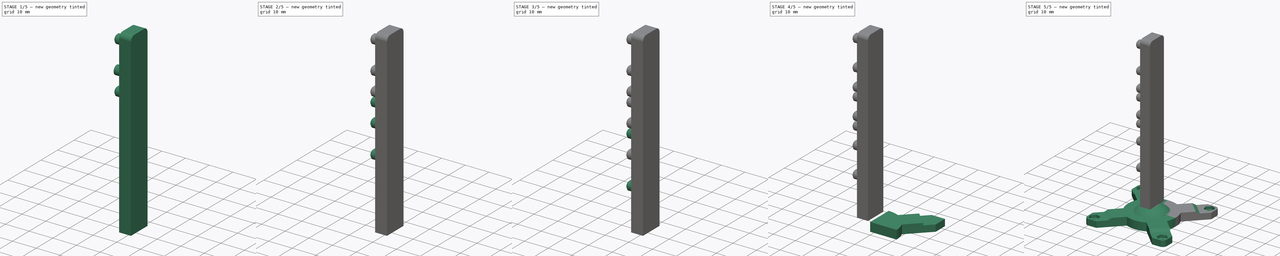
[diagram: build sequence overview — one tinted view per stage of 5, left to right]
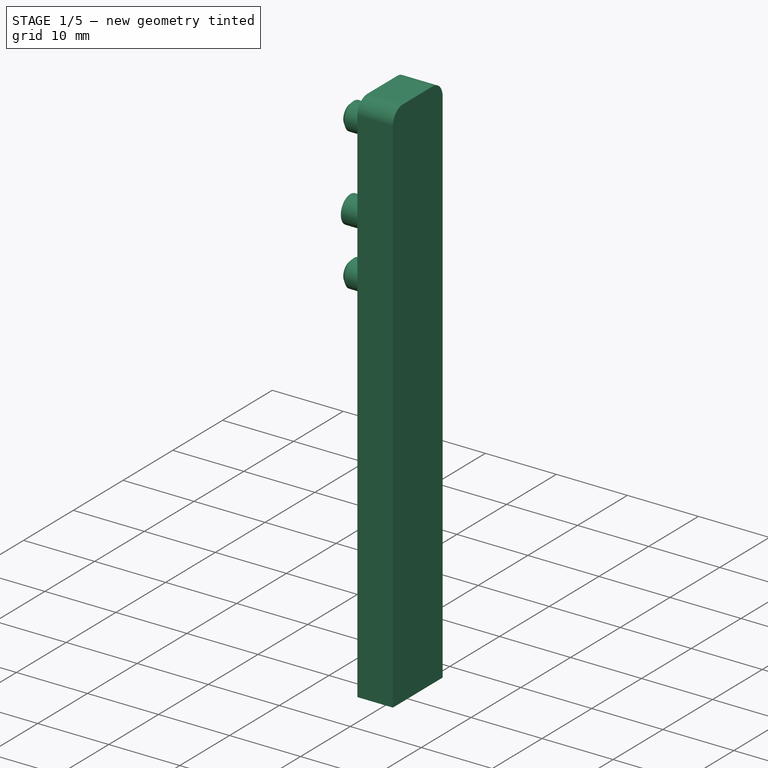
[diagram: stage 1 of 5 — iso view after this stage's code; geometry added in this stage tinted green]
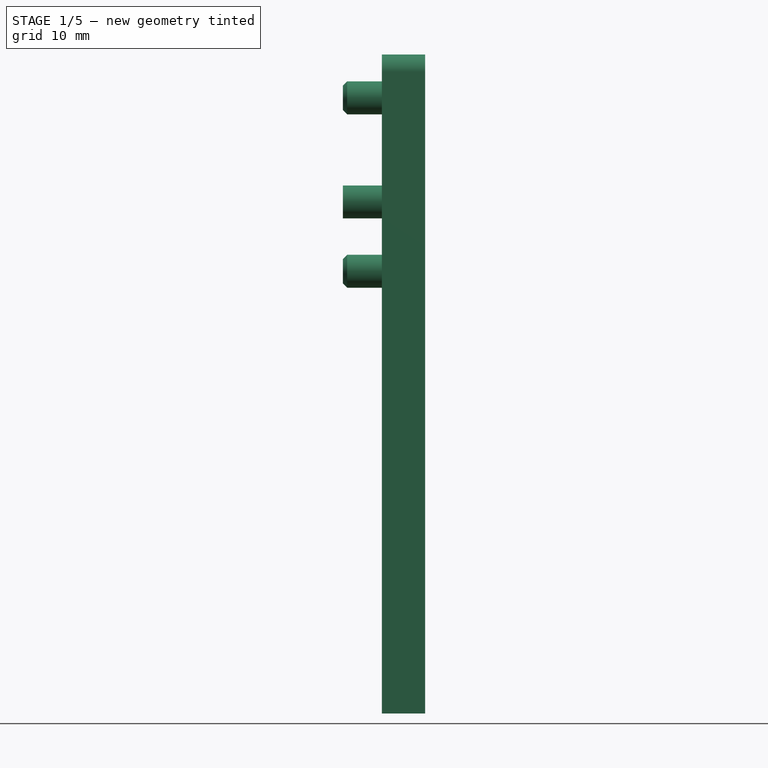
[diagram: stage 1 of 5 — front view after this stage's code; geometry added in this stage tinted green]
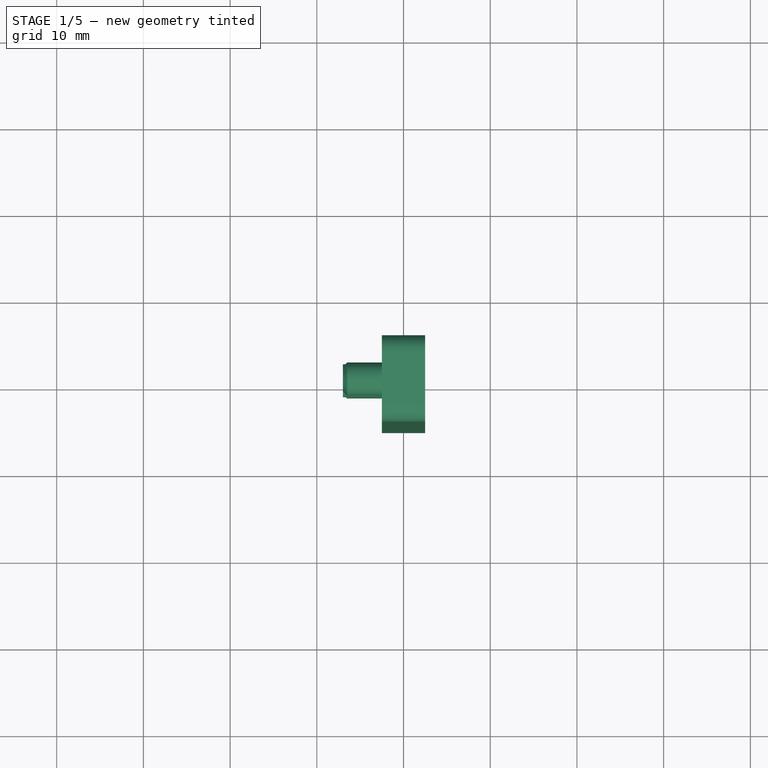
[diagram: stage 1 of 5 — top view after this stage's code; geometry added in this stage tinted green]
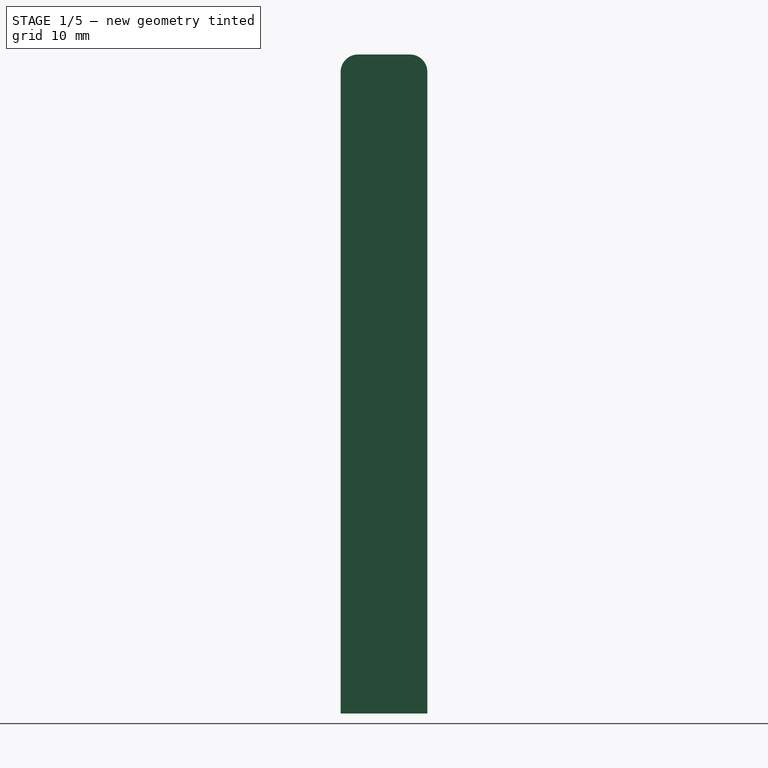
[diagram: stage 1 of 5 — right view after this stage's code; geometry added in this stage tinted green]
FCSTD DOCUMENT  (FreeCAD 0.19R24276 (Git))
Label: flower_whole
License: All rights reserved
LicenseURL: http://en.wikipedia.org/wiki/All_rights_reserved
objects: Sketcher::SketchObject×22, PartDesign::Pad×11, PartDesign::Hole×6, PartDesign::Fillet×6, PartDesign::Body×6, PartDesign::Chamfer×5, PartDesign::LinearPattern×5, PartDesign::Pocket×4, PartDesign::PolarPattern×1, PartDesign::Mirrored×1, PartDesign::Revolution×1
note: 101 computed .brp shape members not serialized (recipe doc carries the construction recipe); baked Part::Feature solids carry a one-line shape summary decoded from their .brp

FEATURE [PartDesign::Body] Body003  label="peduncle02"
  Group = -> [Sketch015,Pad006,Sketch014,Pad005,Chamfer002,LinearPattern002,Sketch013,Hole003,Fillet003]
  Origin = -> Origin003
  Tip = -> Fillet003
FEATURE [Sketcher::SketchObject] Sketch018  label="base_sk003"
  FullyConstrained = true
  MapMode = 5
  Placement = pos=(0,0,0) rot=(0.57735,0.57735,0.57735;2.0944rad)
  Support = -> [YZ_Plane004]
  sketch-geometry (4):
    g0: LineSegment StartX=-5 StartY=7 StartZ=0 EndX=5 EndY=7 EndZ=0
    g1: LineSegment StartX=5 StartY=7 StartZ=0 EndX=5 EndY=71 EndZ=0
    g2: LineSegment StartX=5 StartY=71 StartZ=0 EndX=-5 EndY=71 EndZ=0
    g3: LineSegment StartX=-5 StartY=71 StartZ=0 EndX=-5 EndY=7 EndZ=0
  constraints (11):
    c: Coincident(g0,g1)
    c: Coincident(g1,g2)
    c: Coincident(g2,g3)
    c: Coincident(g3,g0)
    c: Horizontal(g0)
    c: Vertical(g1)
    c: Vertical(g3)
    c: Symmetric(g1,g2,g-2)
    c: Distance(g2) = 10
    c: Distance(g1) = 64
    c: DistanceY(g-1,g0) = 7
FEATURE [PartDesign::Pad] Pad008  label="base003"
  Direction = (1,1,1)
  Length = 5
  Length2 = 100
  Midplane = true
  Placement = pos=(0,0,0) rot=(0.57735,0.57735,0.57735;2.0944rad)
  Profile = -> Sketch018
  Type = 0
FEATURE [Sketcher::SketchObject] Sketch017  label="dowel_pin_sk003"
  ExternalGeometry = -> [Pad008]
  FullyConstrained = true
  MapMode = 5
  Placement = pos=(-2.5,1.1e-15,-8e-16) rot=(0.57735,0.57735,-0.57735;4.18879rad)
  Support = -> [Pad008]
  sketch-geometry (1):
    g0: Circle CenterX=0 CenterY=-66 CenterZ=0 NormalX=0 NormalY=0 NormalZ=1 AngleXU=0 Radius=1.9
  constraints (3):
    c: PointOnObject(g0,g-2)
    c: Radius(g0) = 1.9
    c: Distance(g0,g-3) = 5
FEATURE [PartDesign::Pad] Pad007  label="dowel_pin003"
  BaseFeature = -> Pad008
  Direction = (1,1,1)
  Length = 4.5
  Length2 = 100
  Placement = pos=(0,0,0) rot=(0.57735,0.57735,0.57735;2.0944rad)
  Profile = -> Sketch017
  Type = 0
FEATURE [PartDesign::Body] Body004  label="peduncle03"
  Group = -> [Sketch018,Pad008,Sketch017,Pad007,Chamfer003,LinearPattern003,Sketch016,Hole004,Fillet004]
  Origin = -> Origin004
  Tip = -> Fillet004
FEATURE [Sketcher::SketchObject] Sketch021  label="base_sk004"
  FullyConstrained = true
  MapMode = 5
  Placement = pos=(0,0,0) rot=(0.57735,0.57735,0.57735;2.0944rad)
  Support = -> [YZ_Plane005]
  sketch-geometry (4):
    g0: LineSegment StartX=-5 StartY=7 StartZ=0 EndX=5 EndY=7 EndZ=0
    g1: LineSegment StartX=5 StartY=7 StartZ=0 EndX=5 EndY=83 EndZ=0
    g2: LineSegment StartX=5 StartY=83 StartZ=0 EndX=-5 EndY=83 EndZ=0
    g3: LineSegment StartX=-5 StartY=83 StartZ=0 EndX=-5 EndY=7 EndZ=0
  constraints (11):
    c: Coincident(g0,g1)
    c: Coincident(g1,g2)
    c: Coincident(g2,g3)
    c: Coincident(g3,g0)
    c: Horizontal(g0)
    c: Vertical(g1)
    c: Vertical(g3)
    c: Symmetric(g1,g2,g-2)
    c: Distance(g2) = 10
    c: Distance(g1) = 76
    c: DistanceY(g-1,g0) = 7
FEATURE [PartDesign::Pad] Pad010  label="base004"
  Direction = (1,1,1)
  Length = 5
  Length2 = 100
  Midplane = true
  Placement = pos=(0,0,0) rot=(0.57735,0.57735,0.57735;2.0944rad)
  Profile = -> Sketch021
  Type = 0
FEATURE [Sketcher::SketchObject] Sketch020  label="dowel_pin_sk004"
  ExternalGeometry = -> [Pad010]
  FullyConstrained = true
  MapMode = 5
  Placement = pos=(-2.5,1.1e-15,-8e-16) rot=(0.57735,0.57735,-0.57735;4.18879rad)
  Support = -> [Pad010]
  sketch-geometry (1):
    g0: Circle CenterX=0 CenterY=-78 CenterZ=0 NormalX=0 NormalY=0 NormalZ=1 AngleXU=0 Radius=1.9
  constraints (3):
    c: PointOnObject(g0,g-2)
    c: Radius(g0) = 1.9
    c: Distance(g0,g-3) = 5
FEATURE [PartDesign::Pad] Pad009  label="dowel_pin004"
  BaseFeature = -> Pad010
  Direction = (1,1,1)
  Length = 4.5
  Length2 = 100
  Placement = pos=(0,0,0) rot=(0.57735,0.57735,0.57735;2.0944rad)
  Profile = -> Sketch020
  Type = 0
FEATURE [PartDesign::Chamfer] Chamfer004  label="dowel_pin_chamfer004"
  Angle = 45
  Base = -> Pad009 [Edge15]
  BaseFeature = -> Pad009
  ChamferType = 0
  FlipDirection = false
  Placement = pos=(0,0,0) rot=(0.57735,0.57735,0.57735;2.0944rad)
  Size = 0.5
  Size2 = 1
  SupportTransform = false
FEATURE [PartDesign::LinearPattern] LinearPattern004  label="dual_dowel_pin004"
  BaseFeature = -> Chamfer004
  Direction = -> Z_Axis005
  Length = 20
  Occurrences = 2
  Originals = -> [Pad009,Chamfer004]
  Placement = pos=(0,0,0) rot=(0.57735,0.57735,0.57735;2.0944rad)
  Reversed = true
FEATURE [Sketcher::SketchObject] Sketch019  label="M3_hole_sk004"
  ExternalGeometry = -> [LinearPattern004]
  FullyConstrained = true
  MapMode = 5
  Placement = pos=(-2.5,1.7e-15,-1.1e-15) rot=(-0.57735,-0.57735,0.57735;2.0944rad)
  Support = -> [LinearPattern004]
  sketch-geometry (1):
    g0: Circle CenterX=-1.95e-14 CenterY=-68 CenterZ=0 NormalX=0 NormalY=0 NormalZ=1 AngleXU=0 Radius=1
  constraints (2):
    c: Symmetric(g-4,g-3,g0)
    c: Radius(g0) = 1
FEATURE [PartDesign::Hole] Hole005  label="M3_hole004"
  BaseFeature = -> LinearPattern004
  Depth = 25
  DepthType = 1
  Diameter = 3.4
  DrillForDepth = false
  DrillPoint = 1
  DrillPointAngle = 118
  HoleCutCountersinkAngle = 90
  HoleCutCustomValues = false
  HoleCutDepth = 0
  HoleCutDiameter = 6.1
  HoleCutType = 0
  ModelActualThread = false
  Placement = pos=(0,0,0) rot=(0.57735,0.57735,0.57735;2.0944rad)
  Profile = -> Sketch019
  Tapered = false
  TaperedAngle = 90
  ThreadAngle = 0
  ThreadClass = 0
  ThreadCutOffInner = 0
  ThreadCutOffOuter = 0
  ThreadDirection = 0
  ThreadFit = 0
  ThreadPitch = 0
  ThreadSize = 9
  ThreadType = 1
  Threaded = false
FEATURE [PartDesign::Fillet] Fillet005  label="bar_fillet004"
  Base = -> Hole005 [Edge17,Edge15]
  BaseFeature = -> Hole005
  Placement = pos=(0,0,0) rot=(0.57735,0.57735,0.57735;2.0944rad)
  Radius = 2
  SupportTransform = false
FEATURE [PartDesign::Body] Body005  label="peduncle04"
  Group = -> [Sketch021,Pad010,Sketch020,Pad009,Chamfer004,LinearPattern004,Sketch019,Hole005,Fillet005]
  Origin = -> Origin005
  Tip = -> Fillet005
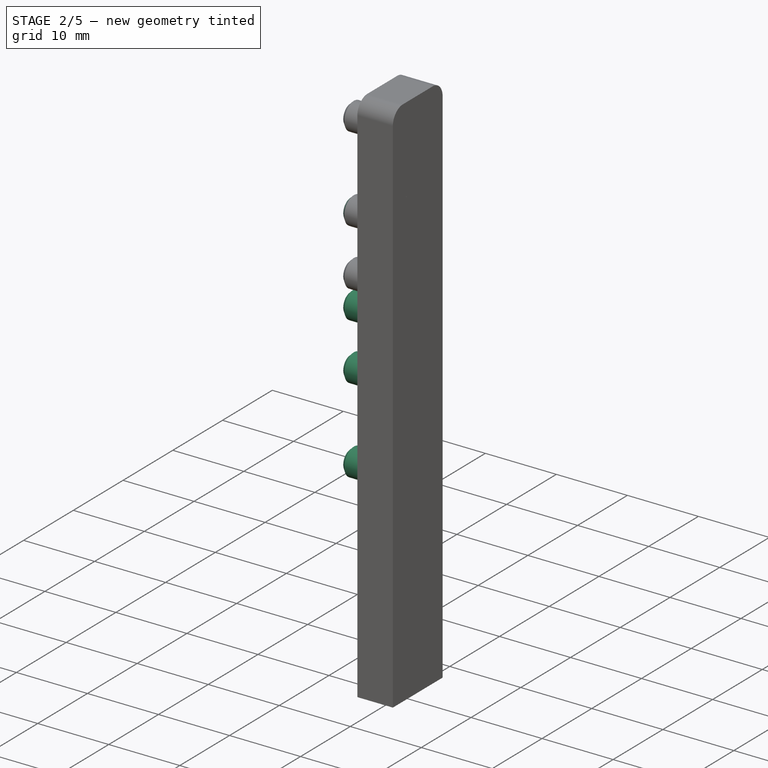
[diagram: stage 2 of 5 — iso view after this stage's code; geometry added in this stage tinted green]
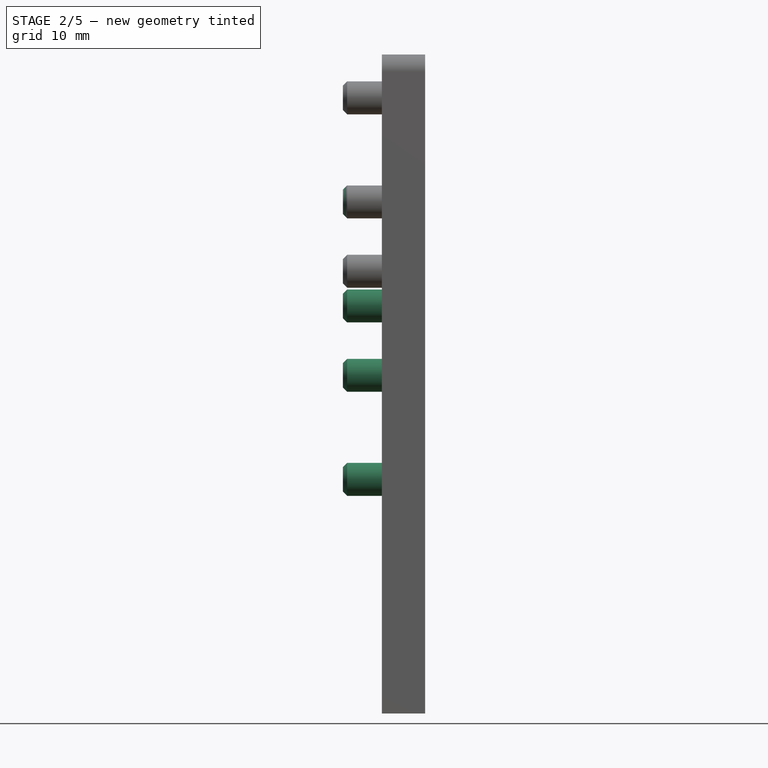
[diagram: stage 2 of 5 — front view after this stage's code; geometry added in this stage tinted green]
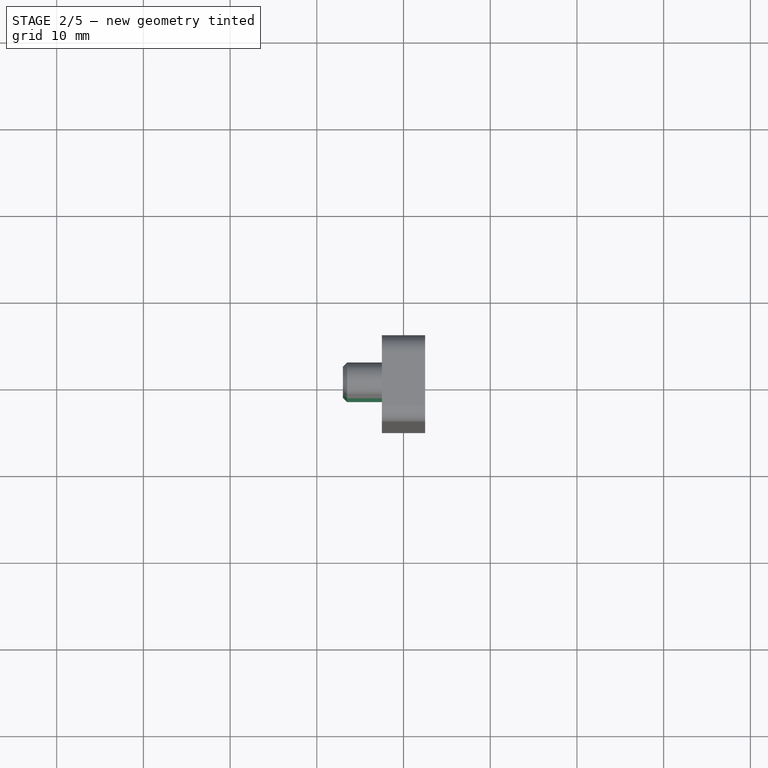
[diagram: stage 2 of 5 — top view after this stage's code; geometry added in this stage tinted green]
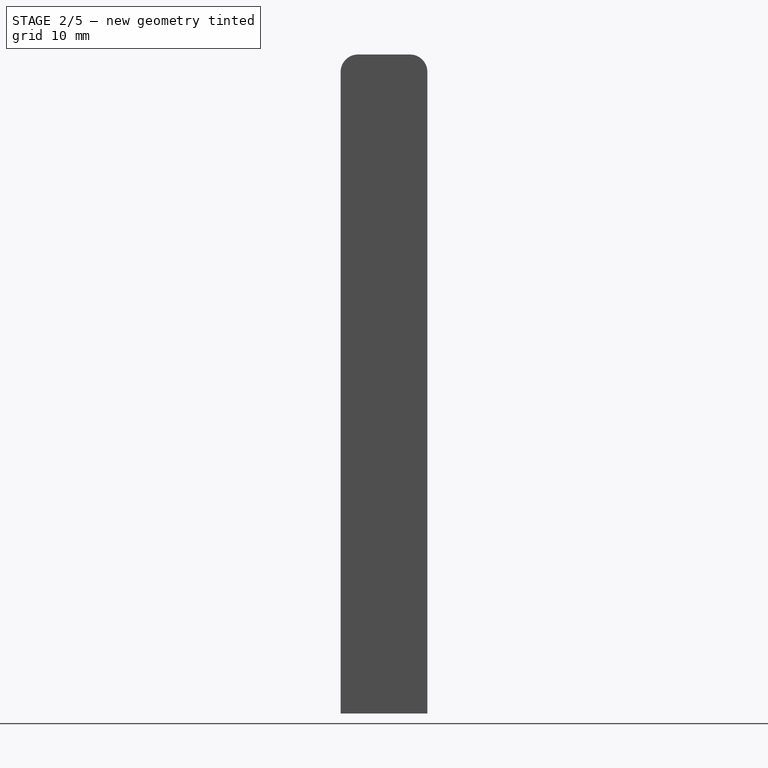
[diagram: stage 2 of 5 — right view after this stage's code; geometry added in this stage tinted green]
FEATURE [PartDesign::Body] Body002  label="peduncle01"
  Group = -> [Sketch012,Pad004,Sketch011,Pad003,Chamfer001,LinearPattern001,Sketch010,Hole002,Fillet002]
  Origin = -> Origin002
  Tip = -> Fillet002
FEATURE [Sketcher::SketchObject] Sketch015  label="base_sk002"
  FullyConstrained = true
  MapMode = 5
  Placement = pos=(0,0,0) rot=(0.57735,0.57735,0.57735;2.0944rad)
  Support = -> [YZ_Plane003]
  sketch-geometry (4):
    g0: LineSegment StartX=-5 StartY=7 StartZ=0 EndX=5 EndY=7 EndZ=0
    g1: LineSegment StartX=5 StartY=7 StartZ=0 EndX=5 EndY=59 EndZ=0
    g2: LineSegment StartX=5 StartY=59 StartZ=0 EndX=-5 EndY=59 EndZ=0
    g3: LineSegment StartX=-5 StartY=59 StartZ=0 EndX=-5 EndY=7 EndZ=0
  constraints (11):
    c: Coincident(g0,g1)
    c: Coincident(g1,g2)
    c: Coincident(g2,g3)
    c: Coincident(g3,g0)
    c: Horizontal(g0)
    c: Vertical(g1)
    c: Vertical(g3)
    c: Symmetric(g1,g2,g-2)
    c: Distance(g2) = 10
    c: Distance(g1) = 52
    c: DistanceY(g-1,g0) = 7
FEATURE [PartDesign::Pad] Pad006  label="base002"
  Direction = (1,1,1)
  Length = 5
  Length2 = 100
  Midplane = true
  Placement = pos=(0,0,0) rot=(0.57735,0.57735,0.57735;2.0944rad)
  Profile = -> Sketch015
  Type = 0
FEATURE [Sketcher::SketchObject] Sketch014  label="dowel_pin_sk002"
  ExternalGeometry = -> [Pad006]
  FullyConstrained = true
  MapMode = 5
  Placement = pos=(-2.5,1.1e-15,-8e-16) rot=(0.57735,0.57735,-0.57735;4.18879rad)
  Support = -> [Pad006]
  sketch-geometry (1):
    g0: Circle CenterX=0 CenterY=-54 CenterZ=0 NormalX=0 NormalY=0 NormalZ=1 AngleXU=0 Radius=1.9
  constraints (3):
    c: PointOnObject(g0,g-2)
    c: Radius(g0) = 1.9
    c: Distance(g0,g-3) = 5
FEATURE [PartDesign::Pad] Pad005  label="dowel_pin002"
  BaseFeature = -> Pad006
  Direction = (1,1,1)
  Length = 4.5
  Length2 = 100
  Placement = pos=(0,0,0) rot=(0.57735,0.57735,0.57735;2.0944rad)
  Profile = -> Sketch014
  Type = 0
FEATURE [PartDesign::Chamfer] Chamfer002  label="dowel_pin_chamfer002"
  Angle = 45
  Base = -> Pad005 [Edge15]
  BaseFeature = -> Pad005
  ChamferType = 0
  FlipDirection = false
  Placement = pos=(0,0,0) rot=(0.57735,0.57735,0.57735;2.0944rad)
  Size = 0.5
  Size2 = 1
  SupportTransform = false
FEATURE [PartDesign::LinearPattern] LinearPattern002  label="dual_dowel_pin002"
  BaseFeature = -> Chamfer002
  Direction = -> Z_Axis003
  Length = 20
  Occurrences = 2
  Originals = -> [Pad005,Chamfer002]
  Placement = pos=(0,0,0) rot=(0.57735,0.57735,0.57735;2.0944rad)
  Reversed = true
FEATURE [PartDesign::Chamfer] Chamfer003  label="dowel_pin_chamfer003"
  Angle = 45
  Base = -> Pad007 [Edge15]
  BaseFeature = -> Pad007
  ChamferType = 0
  FlipDirection = false
  Placement = pos=(0,0,0) rot=(0.57735,0.57735,0.57735;2.0944rad)
  Size = 0.5
  Size2 = 1
  SupportTransform = false
FEATURE [PartDesign::LinearPattern] LinearPattern003  label="dual_dowel_pin003"
  BaseFeature = -> Chamfer003
  Direction = -> Z_Axis004
  Length = 20
  Occurrences = 2
  Originals = -> [Pad007,Chamfer003]
  Placement = pos=(0,0,0) rot=(0.57735,0.57735,0.57735;2.0944rad)
  Reversed = true
FEATURE [Sketcher::SketchObject] Sketch016  label="M3_hole_sk003"
  ExternalGeometry = -> [LinearPattern003]
  FullyConstrained = true
  MapMode = 5
  Placement = pos=(-2.5,1.7e-15,-1.1e-15) rot=(-0.57735,-0.57735,0.57735;2.0944rad)
  Support = -> [LinearPattern003]
  sketch-geometry (1):
    g0: Circle CenterX=-1.69e-14 CenterY=-56 CenterZ=0 NormalX=0 NormalY=0 NormalZ=1 AngleXU=0 Radius=1
  constraints (2):
    c: Symmetric(g-4,g-3,g0)
    c: Radius(g0) = 1
FEATURE [PartDesign::Hole] Hole004  label="M3_hole003"
  BaseFeature = -> LinearPattern003
  Depth = 25
  DepthType = 1
  Diameter = 3.4
  DrillForDepth = false
  DrillPoint = 1
  DrillPointAngle = 118
  HoleCutCountersinkAngle = 90
  HoleCutCustomValues = false
  HoleCutDepth = 0
  HoleCutDiameter = 6.1
  HoleCutType = 0
  ModelActualThread = false
  Placement = pos=(0,0,0) rot=(0.57735,0.57735,0.57735;2.0944rad)
  Profile = -> Sketch016
  Tapered = false
  TaperedAngle = 90
  ThreadAngle = 0
  ThreadClass = 0
  ThreadCutOffInner = 0
  ThreadCutOffOuter = 0
  ThreadDirection = 0
  ThreadFit = 0
  ThreadPitch = 0
  ThreadSize = 9
  ThreadType = 1
  Threaded = false
FEATURE [PartDesign::Fillet] Fillet004  label="bar_fillet003"
  Base = -> Hole004 [Edge17,Edge15]
  BaseFeature = -> Hole004
  Placement = pos=(0,0,0) rot=(0.57735,0.57735,0.57735;2.0944rad)
  Radius = 2
  SupportTransform = false
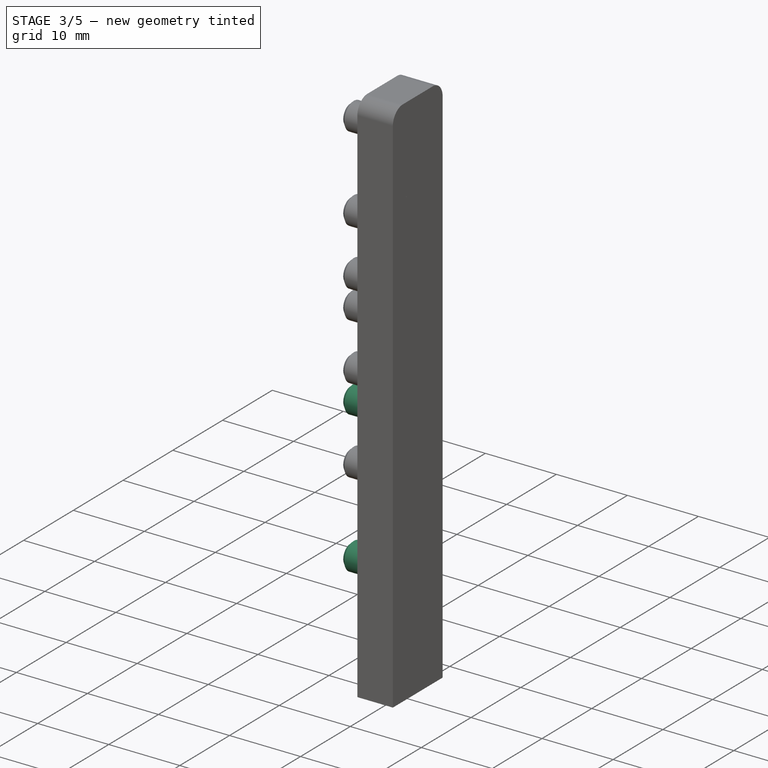
[diagram: stage 3 of 5 — iso view after this stage's code; geometry added in this stage tinted green]
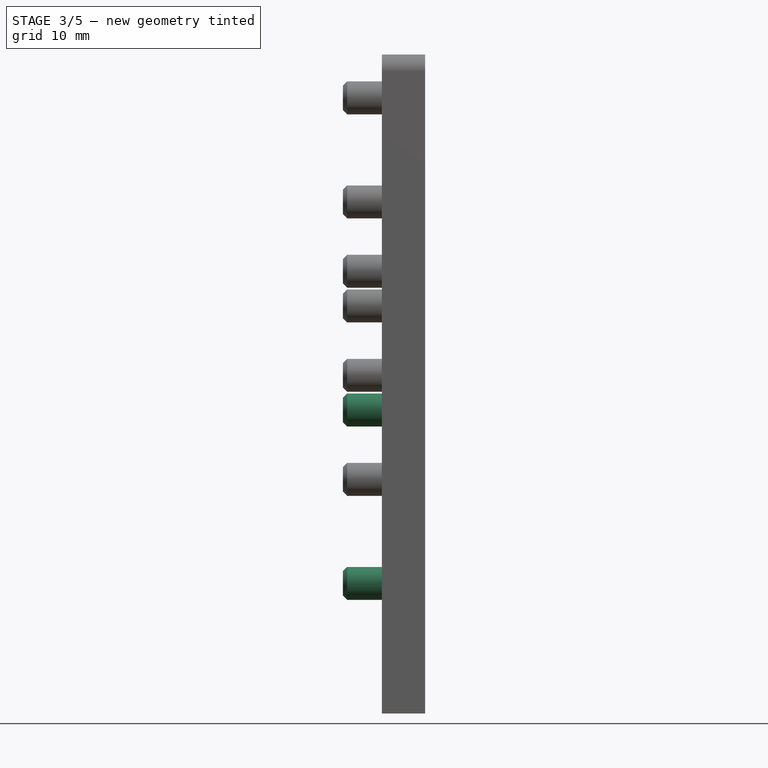
[diagram: stage 3 of 5 — front view after this stage's code; geometry added in this stage tinted green]
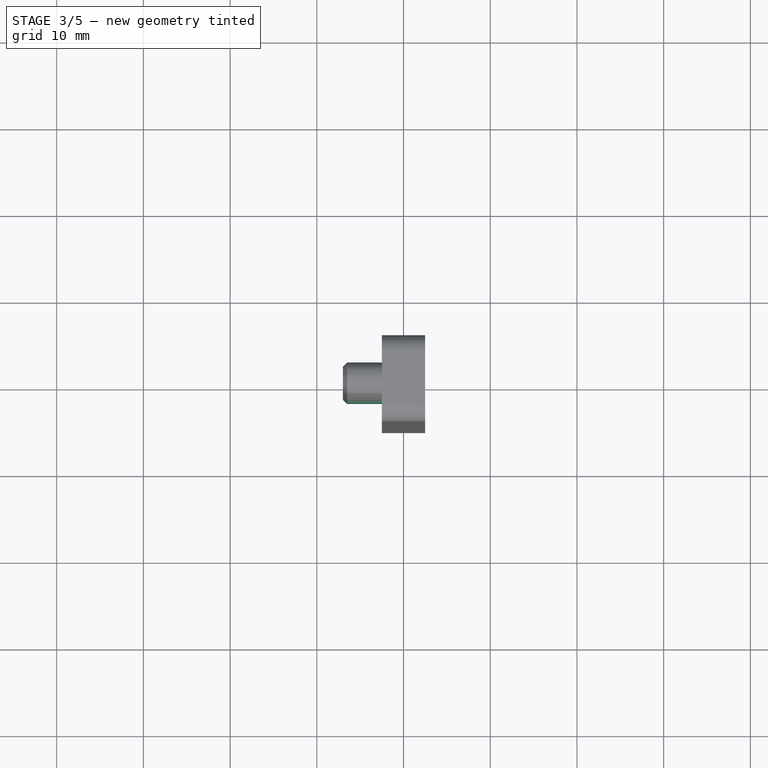
[diagram: stage 3 of 5 — top view after this stage's code; geometry added in this stage tinted green]
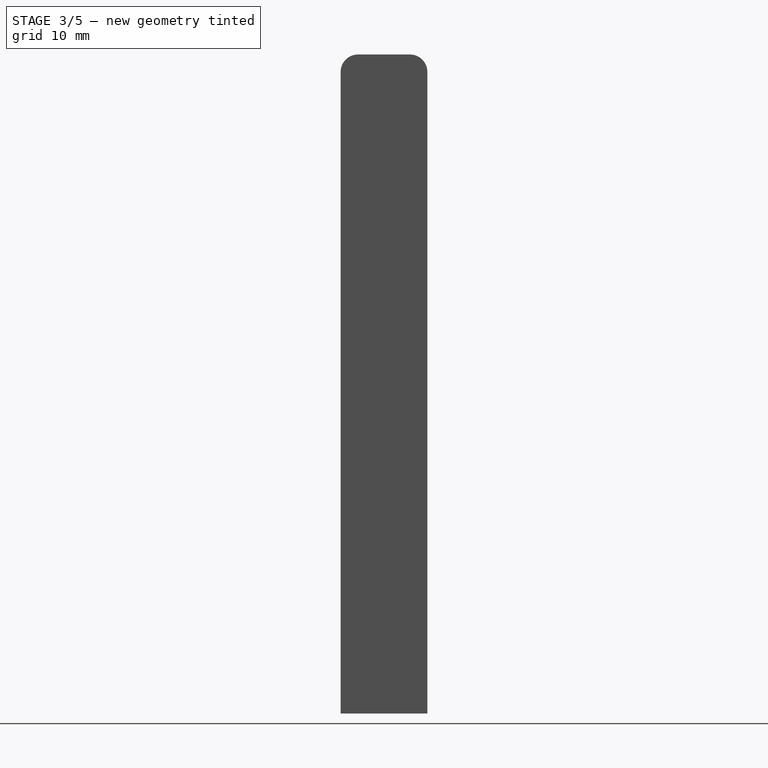
[diagram: stage 3 of 5 — right view after this stage's code; geometry added in this stage tinted green]
FEATURE [PartDesign::Body] Body001  label="peduncle"
  Group = -> [Sketch007,Pad001,Sketch008,Pad002,Chamfer,LinearPattern,Sketch009,Hole001,Fillet001]
  Origin = -> Origin001
  Tip = -> Fillet001
FEATURE [Sketcher::SketchObject] Sketch012  label="base_sk001"
  FullyConstrained = true
  MapMode = 5
  Placement = pos=(0,0,0) rot=(0.57735,0.57735,0.57735;2.0944rad)
  Support = -> [YZ_Plane002]
  sketch-geometry (4):
    g0: LineSegment StartX=-5 StartY=7 StartZ=0 EndX=5 EndY=7 EndZ=0
    g1: LineSegment StartX=5 StartY=7 StartZ=0 EndX=5 EndY=47 EndZ=0
    g2: LineSegment StartX=5 StartY=47 StartZ=0 EndX=-5 EndY=47 EndZ=0
    g3: LineSegment StartX=-5 StartY=47 StartZ=0 EndX=-5 EndY=7 EndZ=0
  constraints (11):
    c: Coincident(g0,g1)
    c: Coincident(g1,g2)
    c: Coincident(g2,g3)
    c: Coincident(g3,g0)
    c: Horizontal(g0)
    c: Vertical(g1)
    c: Vertical(g3)
    c: Symmetric(g1,g2,g-2)
    c: Distance(g2) = 10
    c: Distance(g1) = 40
    c: DistanceY(g-1,g0) = 7
FEATURE [PartDesign::Pad] Pad004  label="base001"
  Direction = (1,1,1)
  Length = 5
  Length2 = 100
  Midplane = true
  Placement = pos=(0,0,0) rot=(0.57735,0.57735,0.57735;2.0944rad)
  Profile = -> Sketch012
  Type = 0
FEATURE [Sketcher::SketchObject] Sketch011  label="dowel_pin_sk001"
  ExternalGeometry = -> [Pad004]
  FullyConstrained = true
  MapMode = 5
  Placement = pos=(-2.5,1.1e-15,-8e-16) rot=(0.57735,0.57735,-0.57735;4.18879rad)
  Support = -> [Pad004]
  sketch-geometry (1):
    g0: Circle CenterX=0 CenterY=-42 CenterZ=0 NormalX=0 NormalY=0 NormalZ=1 AngleXU=0 Radius=1.9
  constraints (3):
    c: PointOnObject(g0,g-2)
    c: Radius(g0) = 1.9
    c: Distance(g0,g-3) = 5
FEATURE [PartDesign::Pad] Pad003  label="dowel_pin001"
  BaseFeature = -> Pad004
  Direction = (1,1,1)
  Length = 4.5
  Length2 = 100
  Placement = pos=(0,0,0) rot=(0.57735,0.57735,0.57735;2.0944rad)
  Profile = -> Sketch011
  Type = 0
FEATURE [PartDesign::Chamfer] Chamfer001  label="dowel_pin_chamfer001"
  Angle = 45
  Base = -> Pad003 [Edge15]
  BaseFeature = -> Pad003
  ChamferType = 0
  FlipDirection = false
  Placement = pos=(0,0,0) rot=(0.57735,0.57735,0.57735;2.0944rad)
  Size = 0.5
  Size2 = 1
  SupportTransform = false
FEATURE [PartDesign::LinearPattern] LinearPattern001  label="dual_dowel_pin001"
  BaseFeature = -> Chamfer001
  Direction = -> Z_Axis002
  Length = 20
  Occurrences = 2
  Originals = -> [Pad003,Chamfer001]
  Placement = pos=(0,0,0) rot=(0.57735,0.57735,0.57735;2.0944rad)
  Reversed = true
FEATURE [Sketcher::SketchObject] Sketch010  label="M3_hole_sk001"
  ExternalGeometry = -> [LinearPattern001]
  FullyConstrained = true
  MapMode = 5
  Placement = pos=(-2.5,1.7e-15,-1.1e-15) rot=(-0.57735,-0.57735,0.57735;2.0944rad)
  Support = -> [LinearPattern001]
  sketch-geometry (1):
    g0: Circle CenterX=-1.15e-14 CenterY=-32 CenterZ=0 NormalX=0 NormalY=0 NormalZ=1 AngleXU=0 Radius=1
  constraints (2):
    c: Symmetric(g-4,g-3,g0)
    c: Radius(g0) = 1
FEATURE [PartDesign::Hole] Hole002  label="M3_hole001"
  BaseFeature = -> LinearPattern001
  Depth = 25
  DepthType = 1
  Diameter = 3.4
  DrillForDepth = false
  DrillPoint = 1
  DrillPointAngle = 118
  HoleCutCountersinkAngle = 90
  HoleCutCustomValues = false
  HoleCutDepth = 0
  HoleCutDiameter = 6.1
  HoleCutType = 0
  ModelActualThread = false
  Placement = pos=(0,0,0) rot=(0.57735,0.57735,0.57735;2.0944rad)
  Profile = -> Sketch010
  Tapered = false
  TaperedAngle = 90
  ThreadAngle = 0
  ThreadClass = 0
  ThreadCutOffInner = 0
  ThreadCutOffOuter = 0
  ThreadDirection = 0
  ThreadFit = 0
  ThreadPitch = 0
  ThreadSize = 9
  ThreadType = 1
  Threaded = false
FEATURE [PartDesign::Fillet] Fillet002  label="bar_fillet001"
  Base = -> Hole002 [Edge17,Edge15]
  BaseFeature = -> Hole002
  Placement = pos=(0,0,0) rot=(0.57735,0.57735,0.57735;2.0944rad)
  Radius = 2
  SupportTransform = false
FEATURE [Sketcher::SketchObject] Sketch013  label="M3_hole_sk002"
  ExternalGeometry = -> [LinearPattern002]
  FullyConstrained = true
  MapMode = 5
  Placement = pos=(-2.5,1.7e-15,-1.1e-15) rot=(-0.57735,-0.57735,0.57735;2.0944rad)
  Support = -> [LinearPattern002]
  sketch-geometry (1):
    g0: Circle CenterX=-1.42e-14 CenterY=-44 CenterZ=0 NormalX=0 NormalY=0 NormalZ=1 AngleXU=0 Radius=1
  constraints (2):
    c: Symmetric(g-4,g-3,g0)
    c: Radius(g0) = 1
FEATURE [PartDesign::Hole] Hole003  label="M3_hole002"
  BaseFeature = -> LinearPattern002
  Depth = 25
  DepthType = 1
  Diameter = 3.4
  DrillForDepth = false
  DrillPoint = 1
  DrillPointAngle = 118
  HoleCutCountersinkAngle = 90
  HoleCutCustomValues = false
  HoleCutDepth = 0
  HoleCutDiameter = 6.1
  HoleCutType = 0
  ModelActualThread = false
  Placement = pos=(0,0,0) rot=(0.57735,0.57735,0.57735;2.0944rad)
  Profile = -> Sketch013
  Tapered = false
  TaperedAngle = 90
  ThreadAngle = 0
  ThreadClass = 0
  ThreadCutOffInner = 0
  ThreadCutOffOuter = 0
  ThreadDirection = 0
  ThreadFit = 0
  ThreadPitch = 0
  ThreadSize = 9
  ThreadType = 1
  Threaded = false
FEATURE [PartDesign::Fillet] Fillet003  label="bar_fillet002"
  Base = -> Hole003 [Edge17,Edge15]
  BaseFeature = -> Hole003
  Placement = pos=(0,0,0) rot=(0.57735,0.57735,0.57735;2.0944rad)
  Radius = 2
  SupportTransform = false
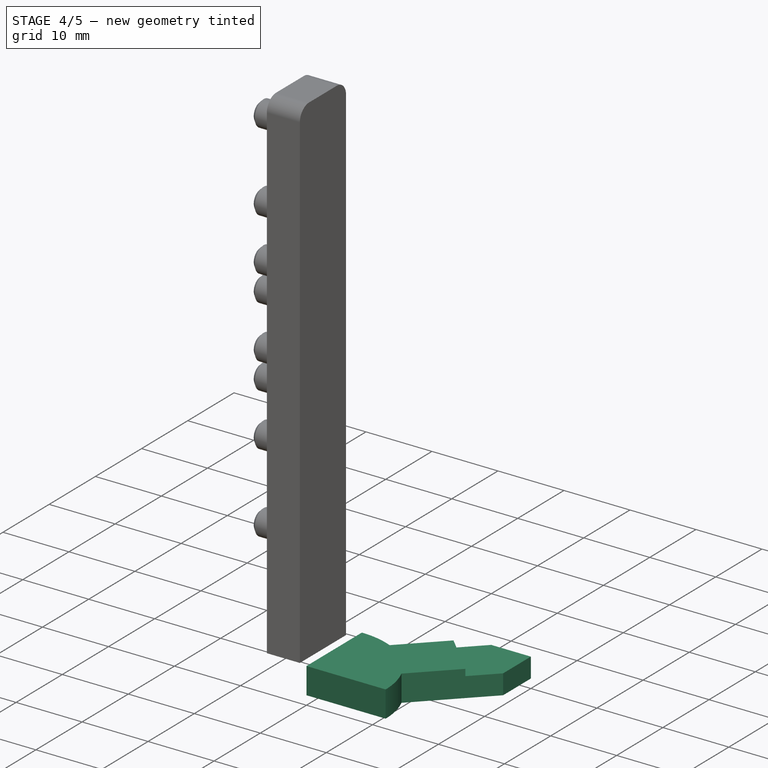
[diagram: stage 4 of 5 — iso view after this stage's code; geometry added in this stage tinted green]
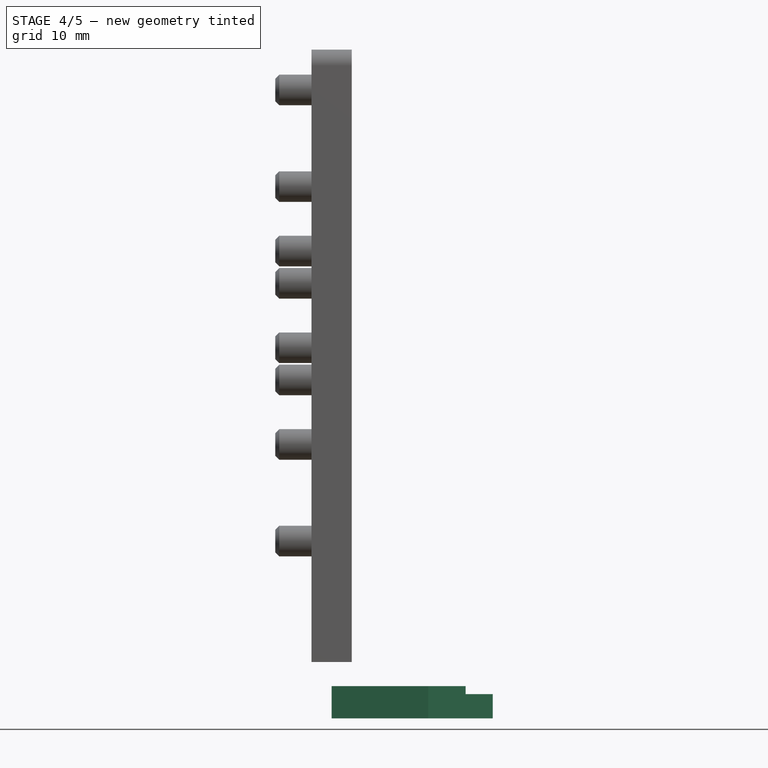
[diagram: stage 4 of 5 — front view after this stage's code; geometry added in this stage tinted green]
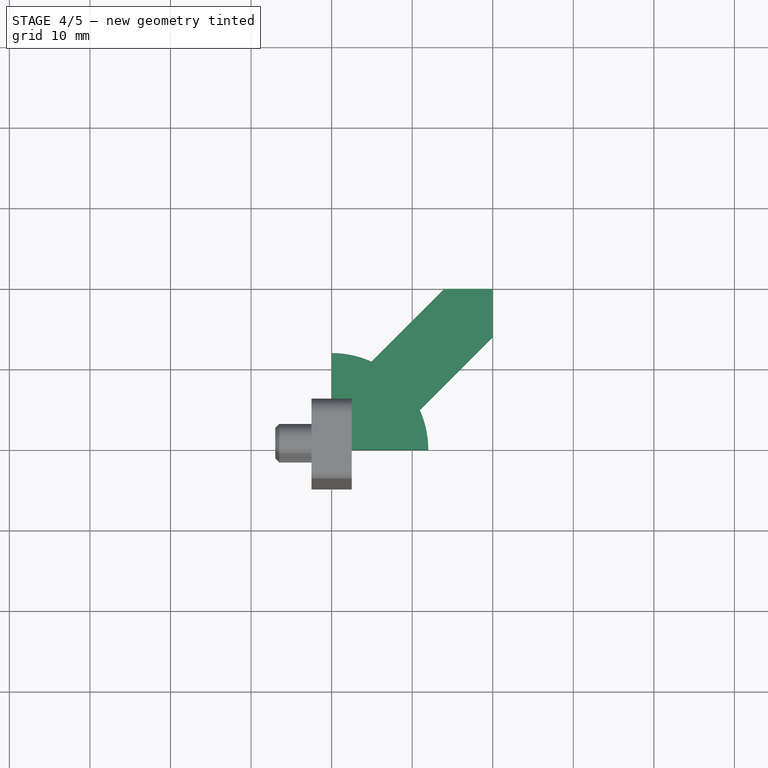
[diagram: stage 4 of 5 — top view after this stage's code; geometry added in this stage tinted green]
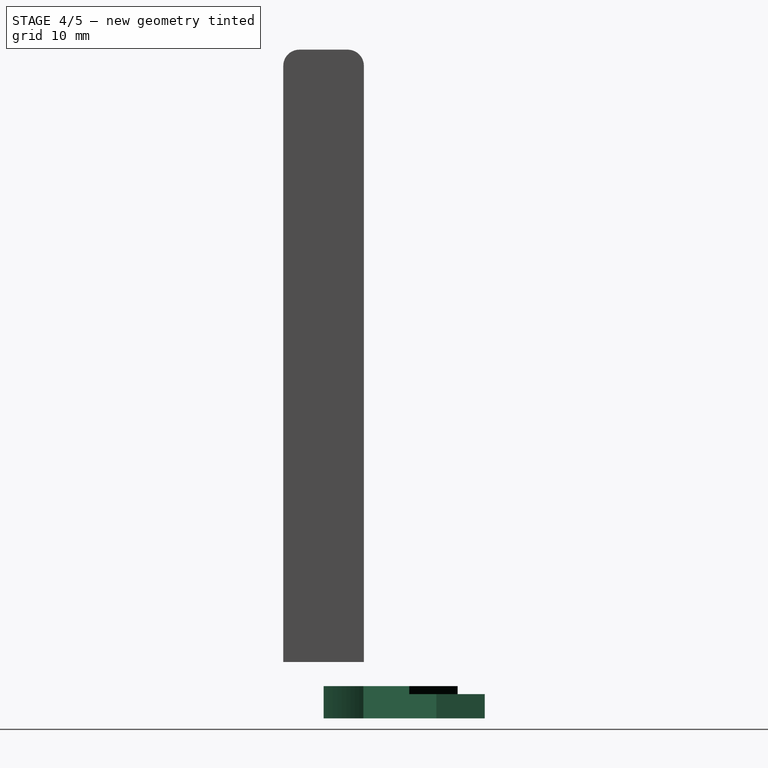
[diagram: stage 4 of 5 — right view after this stage's code; geometry added in this stage tinted green]
FEATURE [Sketcher::SketchObject] Sketch  label="quat_base_sk"
  FullyConstrained = true
  MapMode = 5
  Support = -> [XY_Plane]
  sketch-geometry (9):
    g0: ArcOfCircle CenterX=0 CenterY=0 CenterZ=0 NormalX=0 NormalY=0 NormalZ=1 AngleXU=0 Radius=12 StartAngle=0 EndAngle=0.424031
    g1: LineSegment StartX=20 StartY=20 StartZ=0 EndX=20 EndY=14 EndZ=0
    g2: LineSegment StartX=20 StartY=20 StartZ=0 EndX=14 EndY=20 EndZ=0
    g3: LineSegment StartX=0 StartY=0 StartZ=0 EndX=20 EndY=20 EndZ=0
    g4: LineSegment StartX=10.9373 StartY=4.93725 StartZ=0 EndX=20 EndY=14 EndZ=0
    g5: LineSegment StartX=14 StartY=20 StartZ=0 EndX=4.93725 EndY=10.9373 EndZ=0
    g6: LineSegment StartX=7e-16 StartY=12 StartZ=0 EndX=0 EndY=0 EndZ=0
    g7: LineSegment StartX=0 StartY=0 StartZ=0 EndX=12 EndY=0 EndZ=0
    g8: ArcOfCircle CenterX=0 CenterY=0 CenterZ=0 NormalX=0 NormalY=0 NormalZ=1 AngleXU=0 Radius=12 StartAngle=1.14677 EndAngle=1.5708
  constraints (26):
    c: Coincident(g0,g-1)
    c: PointOnObject(g8,g-2)
    c: PointOnObject(g0,g-1)
    c: Radius(g0) = 12
    c: Vertical(g1)
    c: Coincident(g2,g1)
    c: Horizontal(g2)
    c: DistanceX(g-2,g1) = 20
    c: DistanceY(g-1,g1) = 20
    c: Distance(g1) = 6
    c: Distance(g2) = 6
    c: Coincident(g3,g0)
    c: Coincident(g3,g1)
    c: Coincident(g4,g1)
    c: Coincident(g5,g2)
    c: PointOnObject(g5,g0)
    c: Parallel(g3,g4)
    c: Parallel(g4,g5)
    c: Coincident(g6,g8)
    c: Coincident(g6,g0)
    c: Coincident(g7,g0)
    c: Coincident(g7,g0)
    c: Equal(g0,g8)
    c: Coincident(g0,g4)
    c: Coincident(g0,g8)
    c: PointOnObject(g8,g5)
FEATURE [PartDesign::Pad] Pad  label="quat_base"
  Direction = (1,1,1)
  Length = 4
  Length2 = 100
  Profile = -> Sketch
  Type = 0
FEATURE [Sketcher::SketchObject] Sketch001  label="thumb_hole_sk"
  ExternalGeometry = -> [Pad]
  FullyConstrained = true
  MapMode = 5
  Placement = pos=(0,0,4) rot=(0,0,1;0rad)
  Support = -> [Pad]
  sketch-geometry (5):
    g0: LineSegment StartX=10.636 StartY=16.636 StartZ=0 EndX=16.636 EndY=10.636 EndZ=0
    g1: LineSegment StartX=16.636 StartY=10.636 StartZ=0 EndX=20 EndY=14 EndZ=0
    g2: LineSegment StartX=20 StartY=14 StartZ=0 EndX=20 EndY=20 EndZ=0
    g3: LineSegment StartX=20 StartY=20 StartZ=0 EndX=14 EndY=20 EndZ=0
    g4: LineSegment StartX=14 StartY=20 StartZ=0 EndX=10.636 EndY=16.636 EndZ=0
  constraints (12):
    c: PointOnObject(g0,g-6)
    c: PointOnObject(g0,g-5)
    c: Coincident(g0,g1)
    c: Coincident(g1,g-5)
    c: Coincident(g1,g2)
    c: Coincident(g2,g-4)
    c: Coincident(g2,g3)
    c: Coincident(g3,g-6)
    c: Coincident(g3,g4)
    c: Coincident(g4,g0)
    c: Perpendicular(g-5,g0)
    c: Distance(g2,g0) = 9
FEATURE [PartDesign::Pocket] Pocket  label="thumb_hole"
  BaseFeature = -> Pad
  Length = 1
  Length2 = 100
  Profile = -> Sketch001
  Type = 0
FEATURE [PartDesign::Body] Body  label="flower"
  Group = -> [Sketch,Pad,Sketch001,Pocket,Sketch002,Pocket001,Sketch003,Hole,Fillet,Sketch004,Pocket002,PolarPattern,Sketch005,Pocket003,Mirrored,Sketch006,Revolution]
  Origin = -> Origin
  Placement = pos=(0,0,3) rot=(0,0,1;0rad)
  Tip = -> Revolution
FEATURE [Sketcher::SketchObject] Sketch007  label="base_sk"
  FullyConstrained = true
  MapMode = 5
  Placement = pos=(0,0,0) rot=(0.57735,0.57735,0.57735;2.0944rad)
  Support = -> [YZ_Plane001]
  sketch-geometry (4):
    g0: LineSegment StartX=-5 StartY=7 StartZ=0 EndX=5 EndY=7 EndZ=0
    g1: LineSegment StartX=5 StartY=7 StartZ=0 EndX=5 EndY=47 EndZ=0
    g2: LineSegment StartX=5 StartY=47 StartZ=0 EndX=-5 EndY=47 EndZ=0
    g3: LineSegment StartX=-5 StartY=47 StartZ=0 EndX=-5 EndY=7 EndZ=0
  constraints (11):
    c: Coincident(g0,g1)
    c: Coincident(g1,g2)
    c: Coincident(g2,g3)
    c: Coincident(g3,g0)
    c: Horizontal(g0)
    c: Vertical(g1)
    c: Vertical(g3)
    c: Symmetric(g1,g2,g-2)
    c: Distance(g2) = 10
    c: Distance(g1) = 40
    c: DistanceY(g-1,g0) = 7
FEATURE [PartDesign::Pad] Pad001  label="base"
  Direction = (1,1,1)
  Length = 5
  Length2 = 100
  Midplane = true
  Placement = pos=(0,0,0) rot=(0.57735,0.57735,0.57735;2.0944rad)
  Profile = -> Sketch007
  Type = 0
FEATURE [Sketcher::SketchObject] Sketch008  label="dowel_pin_sk"
  ExternalGeometry = -> [Pad001]
  FullyConstrained = true
  MapMode = 5
  Placement = pos=(-2.5,1.1e-15,-8e-16) rot=(0.57735,0.57735,-0.57735;4.18879rad)
  Support = -> [Pad001]
  sketch-geometry (1):
    g0: Circle CenterX=0 CenterY=-42 CenterZ=0 NormalX=0 NormalY=0 NormalZ=1 AngleXU=0 Radius=1.9
  constraints (3):
    c: PointOnObject(g0,g-2)
    c: Radius(g0) = 1.9
    c: Distance(g0,g-3) = 5
FEATURE [PartDesign::Pad] Pad002  label="dowel_pin"
  BaseFeature = -> Pad001
  Direction = (1,1,1)
  Length = 4.5
  Length2 = 100
  Placement = pos=(0,0,0) rot=(0.57735,0.57735,0.57735;2.0944rad)
  Profile = -> Sketch008
  Type = 0
FEATURE [PartDesign::Chamfer] Chamfer  label="dowel_pin_chamfer"
  Angle = 45
  Base = -> Pad002 [Edge15]
  BaseFeature = -> Pad002
  ChamferType = 0
  FlipDirection = false
  Placement = pos=(0,0,0) rot=(0.57735,0.57735,0.57735;2.0944rad)
  Size = 0.5
  Size2 = 1
  SupportTransform = false
FEATURE [PartDesign::LinearPattern] LinearPattern  label="dual_dowel_pin"
  BaseFeature = -> Chamfer
  Direction = -> Z_Axis001
  Length = 20
  Occurrences = 2
  Originals = -> [Pad002,Chamfer]
  Placement = pos=(0,0,0) rot=(0.57735,0.57735,0.57735;2.0944rad)
  Reversed = true
FEATURE [Sketcher::SketchObject] Sketch009  label="M3_hole_sk"
  ExternalGeometry = -> [LinearPattern]
  FullyConstrained = true
  MapMode = 5
  Placement = pos=(-2.5,1.7e-15,-1.1e-15) rot=(-0.57735,-0.57735,0.57735;2.0944rad)
  Support = -> [LinearPattern]
  sketch-geometry (1):
    g0: Circle CenterX=-1.15e-14 CenterY=-32 CenterZ=0 NormalX=0 NormalY=0 NormalZ=1 AngleXU=0 Radius=1
  constraints (2):
    c: Symmetric(g-4,g-3,g0)
    c: Radius(g0) = 1
FEATURE [PartDesign::Hole] Hole001  label="M3_hole"
  BaseFeature = -> LinearPattern
  Depth = 25
  DepthType = 1
  Diameter = 3.4
  DrillForDepth = false
  DrillPoint = 1
  DrillPointAngle = 118
  HoleCutCountersinkAngle = 90
  HoleCutCustomValues = false
  HoleCutDepth = 0
  HoleCutDiameter = 6.1
  HoleCutType = 0
  ModelActualThread = false
  Placement = pos=(0,0,0) rot=(0.57735,0.57735,0.57735;2.0944rad)
  Profile = -> Sketch009
  Tapered = false
  TaperedAngle = 90
  ThreadAngle = 0
  ThreadClass = 0
  ThreadCutOffInner = 0
  ThreadCutOffOuter = 0
  ThreadDirection = 0
  ThreadFit = 0
  ThreadPitch = 0
  ThreadSize = 9
  ThreadType = 1
  Threaded = false
FEATURE [PartDesign::Fillet] Fillet001  label="bar_fillet"
  Base = -> Hole001 [Edge17,Edge15]
  BaseFeature = -> Hole001
  Placement = pos=(0,0,0) rot=(0.57735,0.57735,0.57735;2.0944rad)
  Radius = 2
  SupportTransform = false
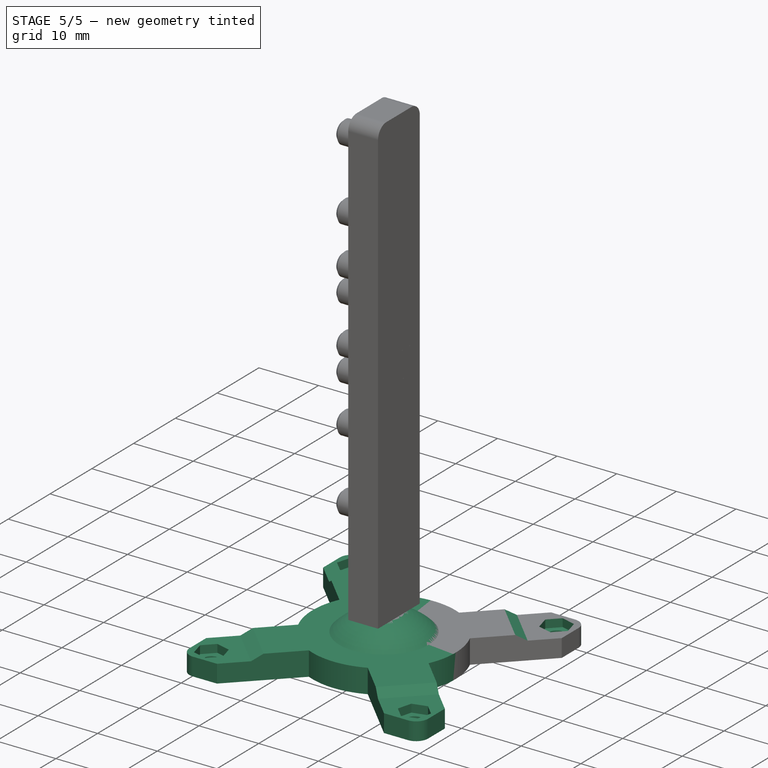
[diagram: stage 5 of 5 — iso view after this stage's code; geometry added in this stage tinted green]
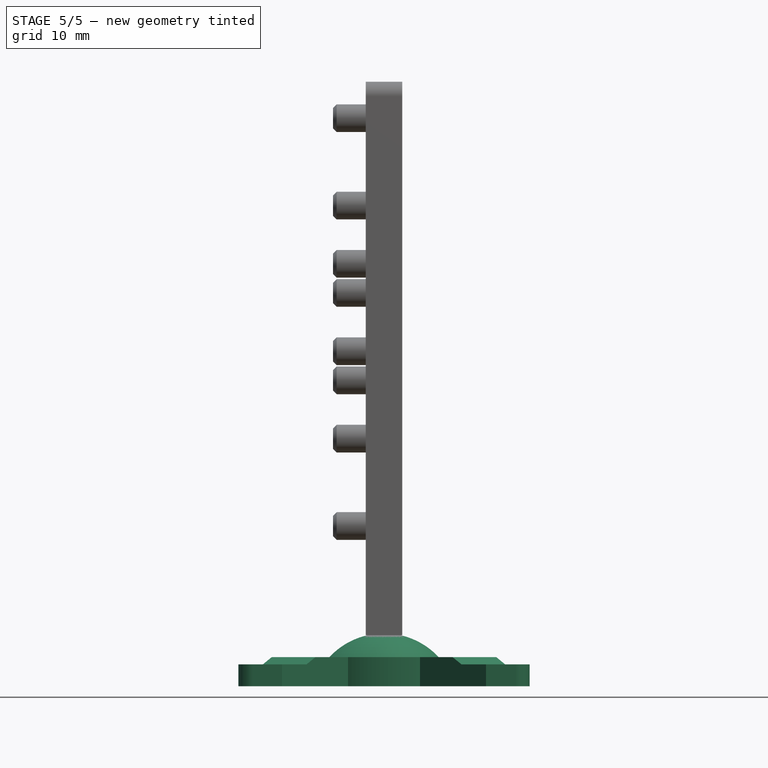
[diagram: stage 5 of 5 — front view after this stage's code; geometry added in this stage tinted green]
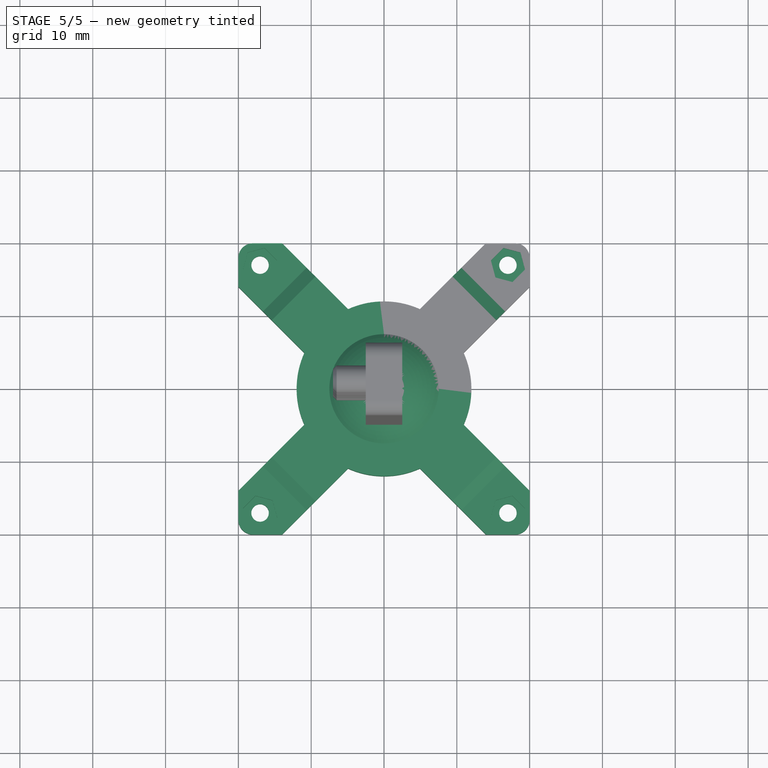
[diagram: stage 5 of 5 — top view after this stage's code; geometry added in this stage tinted green]
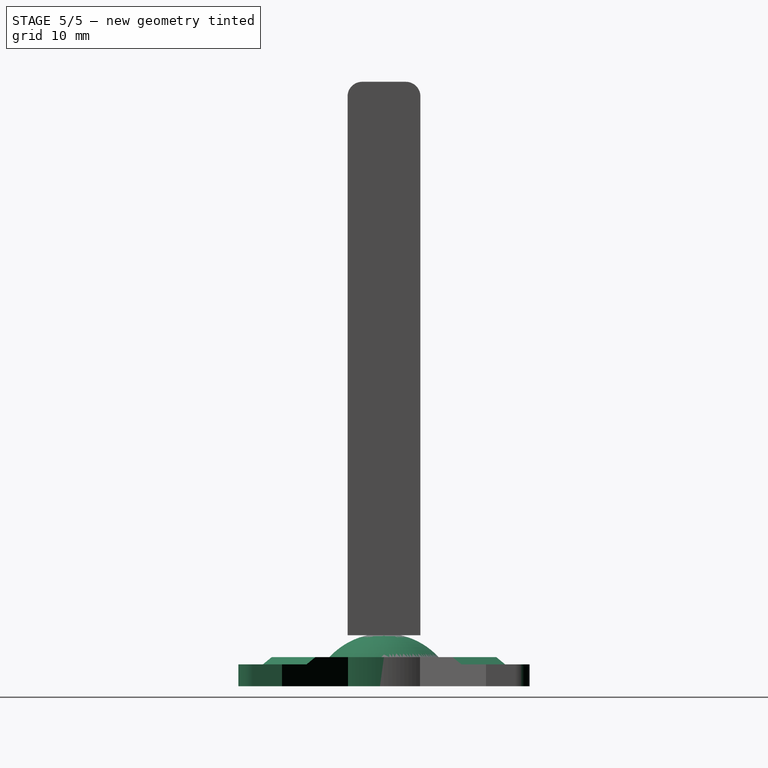
[diagram: stage 5 of 5 — right view after this stage's code; geometry added in this stage tinted green]
FEATURE [Sketcher::SketchObject] Sketch002  label="M2_hex_countersink_sk"
  ExternalGeometry = -> [Pocket]
  FullyConstrained = true
  MapMode = 5
  Placement = pos=(0,0,3) rot=(0,0,1;0rad)
  Support = -> [Pocket]
  sketch-geometry (7):
    g0: LineSegment StartX=18.7346 StartY=18.7346 StartZ=0 EndX=16.3924 EndY=19.3622 EndZ=0
    g1: LineSegment StartX=16.3924 StartY=19.3622 StartZ=0 EndX=14.6778 EndY=17.6476 EndZ=0
    g2: LineSegment StartX=14.6778 StartY=17.6476 StartZ=0 EndX=15.3054 EndY=15.3054 EndZ=0
    g3: LineSegment StartX=15.3054 StartY=15.3054 StartZ=0 EndX=17.6476 EndY=14.6778 EndZ=0
    g4: LineSegment StartX=17.6476 StartY=14.6778 StartZ=0 EndX=19.3622 EndY=16.3924 EndZ=0
    g5: LineSegment StartX=19.3622 StartY=16.3924 StartZ=0 EndX=18.7346 EndY=18.7346 EndZ=0
    g6: Circle CenterX=17.02 CenterY=17.02 CenterZ=0 NormalX=0 NormalY=0 NormalZ=1 AngleXU=0 Radius=2.42487
  constraints (17):
    c: Coincident(g0,g1)
    c: Coincident(g1,g2)
    c: Coincident(g2,g3)
    c: Coincident(g3,g4)
    c: Coincident(g4,g5)
    c: Coincident(g5,g0)
    c: Equal(g0, g1-g5) x5
    c: PointOnObject(g0,g6)
    c: PointOnObject(g1,g6)
    c: PointOnObject(g2,g6)
    c: PointOnObject(g3,g6)
    c: PointOnObject(g4,g6)
    c: PointOnObject(g5,g6)
    c: DistanceX(g-2,g6) = 17.02
    c: DistanceY(g-1,g6) = 17.02
    c: Parallel(g4,g-3)
    c: Distance(g3,g1) = 4.2
FEATURE [PartDesign::Pocket] Pocket001  label="M2_hex_countersink"
  BaseFeature = -> Pocket
  Length = 1.35
  Length2 = 100
  Profile = -> Sketch002
  Type = 0
FEATURE [Sketcher::SketchObject] Sketch003  label="M2_hole_sk"
  ExternalGeometry = -> [Pocket001]
  FullyConstrained = true
  MapMode = 5
  Placement = pos=(0,0,1.65) rot=(0,0,1;0rad)
  Support = -> [Pocket001]
  sketch-geometry (1):
    g0: Circle CenterX=17.02 CenterY=17.02 CenterZ=0 NormalX=0 NormalY=0 NormalZ=1 AngleXU=0 Radius=1
  constraints (2):
    c: Symmetric(g-4,g-3,g0)
    c: Radius(g0) = 1
FEATURE [PartDesign::Hole] Hole  label="M2_hole"
  BaseFeature = -> Pocket001
  Depth = 25
  DepthType = 1
  Diameter = 2.4
  DrillForDepth = false
  DrillPoint = 1
  DrillPointAngle = 118
  HoleCutCountersinkAngle = 90
  HoleCutCustomValues = false
  HoleCutDepth = 0
  HoleCutDiameter = 6.1
  HoleCutType = 0
  ModelActualThread = false
  Profile = -> Sketch003
  Tapered = false
  TaperedAngle = 90
  ThreadAngle = 0
  ThreadClass = 0
  ThreadCutOffInner = 0
  ThreadCutOffOuter = 0
  ThreadDirection = 0
  ThreadFit = 0
  ThreadPitch = 0
  ThreadSize = 6
  ThreadType = 1
  Threaded = false
FEATURE [PartDesign::Fillet] Fillet  label="corner_fillet"
  Base = -> Hole [Edge4]
  BaseFeature = -> Hole
  Radius = 2
  SupportTransform = false
FEATURE [Sketcher::SketchObject] Sketch004  label="slope_sk"
  ExternalGeometry = -> [Fillet]
  FullyConstrained = true
  MapMode = 5
  Placement = pos=(-3,3,0) rot=(-0.281085,0.678598,0.678598;3.68962rad)
  Support = -> [Fillet]
  sketch-geometry (3):
    g0: LineSegment StartX=-19.2843 StartY=3 StartZ=0 EndX=-17.5522 EndY=4 EndZ=0
    g1: LineSegment StartX=-17.5522 StartY=4 StartZ=0 EndX=-19.2843 EndY=4 EndZ=0
    g2: LineSegment StartX=-19.2843 StartY=4 StartZ=0 EndX=-19.2843 EndY=3 EndZ=0
  constraints (7):
    c: Coincident(g-3,g0)
    c: PointOnObject(g0,g-4)
    c: Coincident(g0,g1)
    c: Coincident(g1,g-4)
    c: Coincident(g2,g1)
    c: Coincident(g2,g0)
    c: Angle(g1,g0) = 0.523599
FEATURE [PartDesign::Pocket] Pocket002  label="slope"
  BaseFeature = -> Fillet
  Length = 5
  Length2 = 100
  Profile = -> Sketch004
  Type = 1
FEATURE [PartDesign::PolarPattern] PolarPattern  label="flower_body"
  Angle = 360
  Axis = -> Sketch [N_Axis]
  BaseFeature = -> Pocket002
  Occurrences = 4
  Originals = -> [Pad,Pocket,Pocket001,Hole,Fillet,Pocket002]
FEATURE [Sketcher::SketchObject] Sketch005  label="lens_screw_hole_sk"
  FullyConstrained = true
  MapMode = 5
  Placement = pos=(0,0,0) rot=(1,0,0;3.14159rad)
  Support = -> [PolarPattern]
  sketch-geometry (1):
    g0: Circle CenterX=-9 CenterY=0 CenterZ=0 NormalX=0 NormalY=0 NormalZ=1 AngleXU=0 Radius=2
  constraints (3):
    c: PointOnObject(g0,g-1)
    c: Radius(g0) = 2
    c: DistanceX(g-2,g0) = -9
FEATURE [PartDesign::Pocket] Pocket003  label="lens_screw_hole"
  BaseFeature = -> PolarPattern
  Length = 1.5
  Length2 = 100
  Profile = -> Sketch005
  Type = 0
FEATURE [PartDesign::Mirrored] Mirrored  label="dual_lens_screw_hole"
  BaseFeature = -> Pocket003
  MirrorPlane = -> YZ_Plane
  Originals = -> [Pocket003]
FEATURE [Sketcher::SketchObject] Sketch006  label="sepal_sk"
  ExternalGeometry = -> [Mirrored]
  FullyConstrained = true
  MapMode = 5
  Placement = pos=(0,0,0) rot=(1,0,0;1.5708rad)
  Support = -> [XZ_Plane]
  sketch-geometry (3):
    g0: ArcOfCircle CenterX=0 CenterY=-3 CenterZ=0 NormalX=0 NormalY=0 NormalZ=1 AngleXU=0 Radius=10.2591 StartAngle=0.750929 EndAngle=1.5708
    g1: LineSegment StartX=6e-16 StartY=7.25914 StartZ=0 EndX=0 EndY=4 EndZ=0
    g2: LineSegment StartX=0 StartY=4 StartZ=0 EndX=7.5 EndY=4 EndZ=0
  constraints (9):
    c: PointOnObject(g0,g-2)
    c: PointOnObject(g0,g-2)
    c: DistanceY(g-1,g0) = -3
    c: Coincident(g1,g0)
    c: Coincident(g1,g-3)
    c: Coincident(g2,g1)
    c: Coincident(g2,g0)
    c: PointOnObject(g0,g-3)
    c: Distance(g2) = 7.5
FEATURE [PartDesign::Revolution] Revolution  label="sepal"
  Angle = 360
  Axis = (-3e-16,3e-16,1)
  Base = (0,0,0)
  BaseFeature = -> Mirrored
  Profile = -> Sketch006
  ReferenceAxis = -> Z_Axis
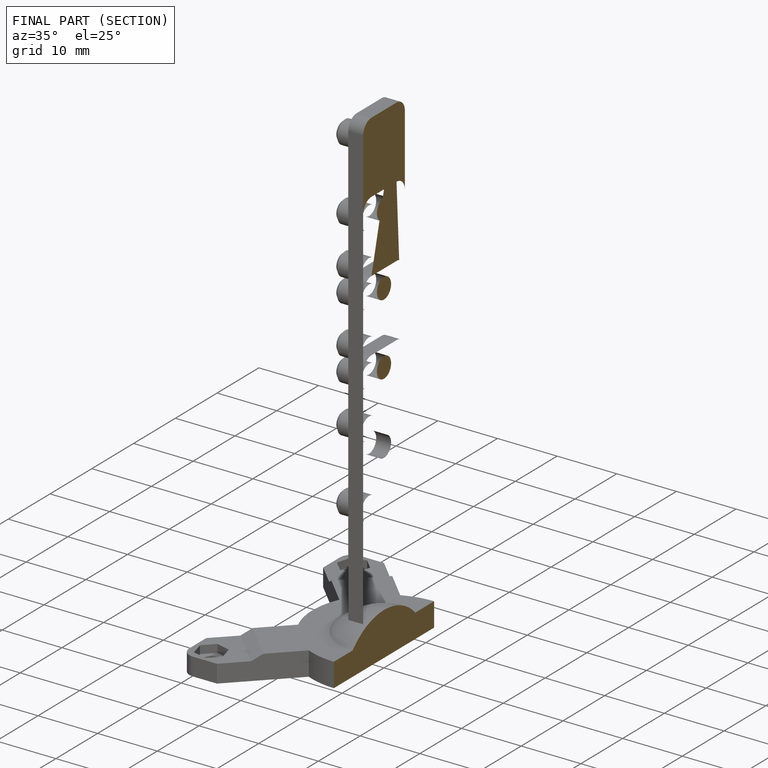
[diagram: finished part — half-section view (interior)]
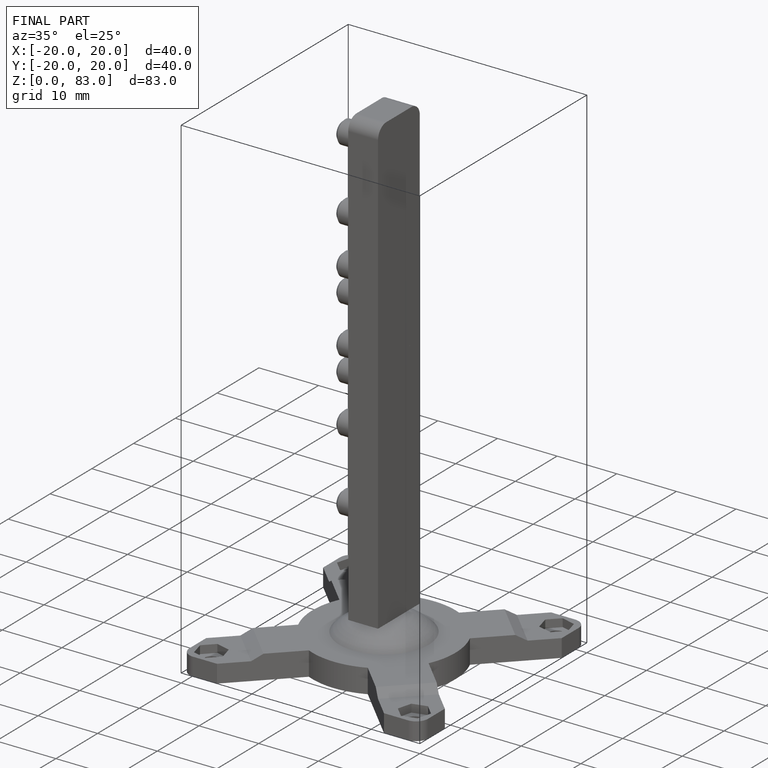
[diagram: finished part — iso view with bounding-box wireframe]
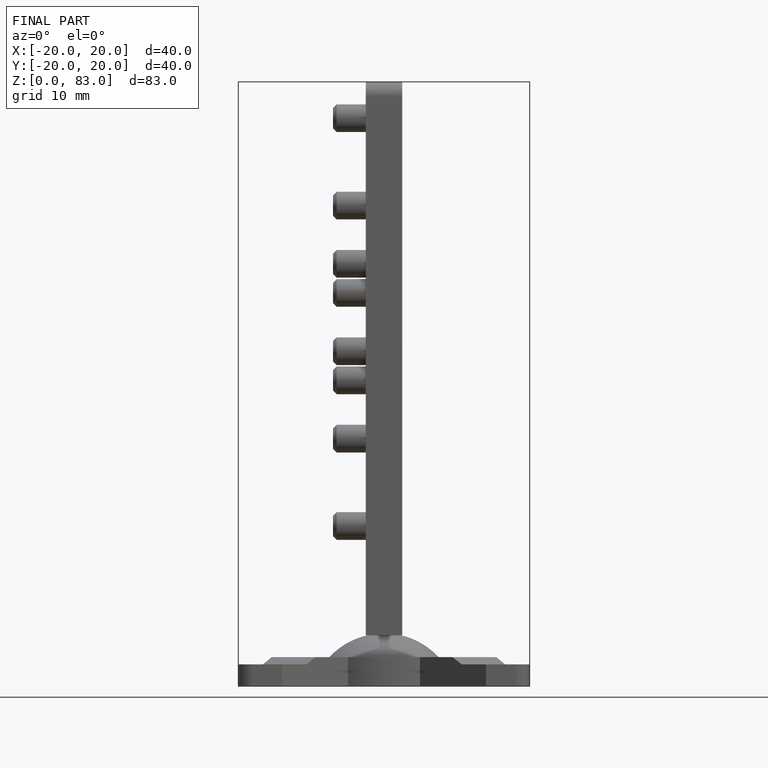
[diagram: finished part — front view with bounding-box wireframe]
